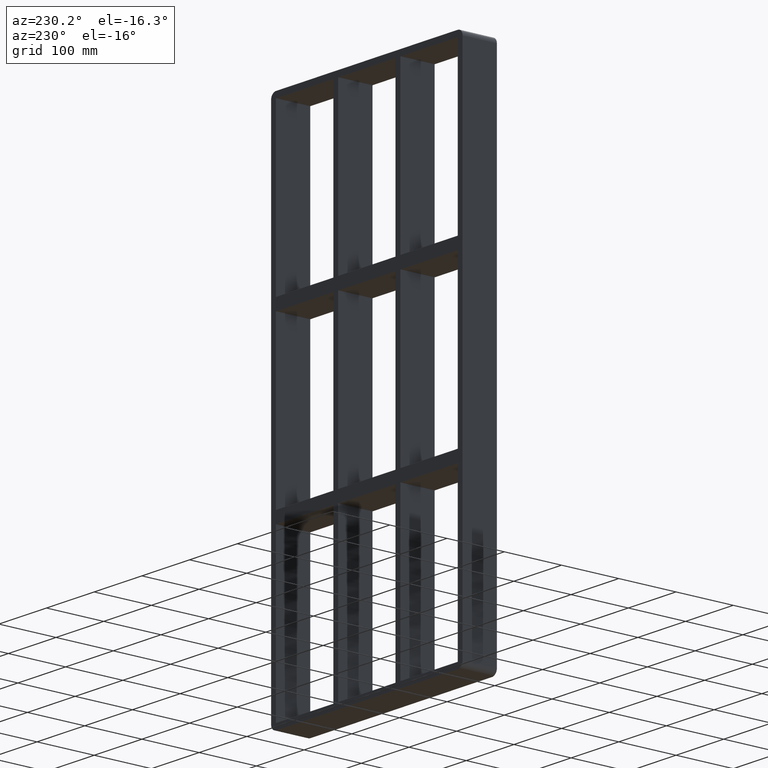
[diagram: clean part render]
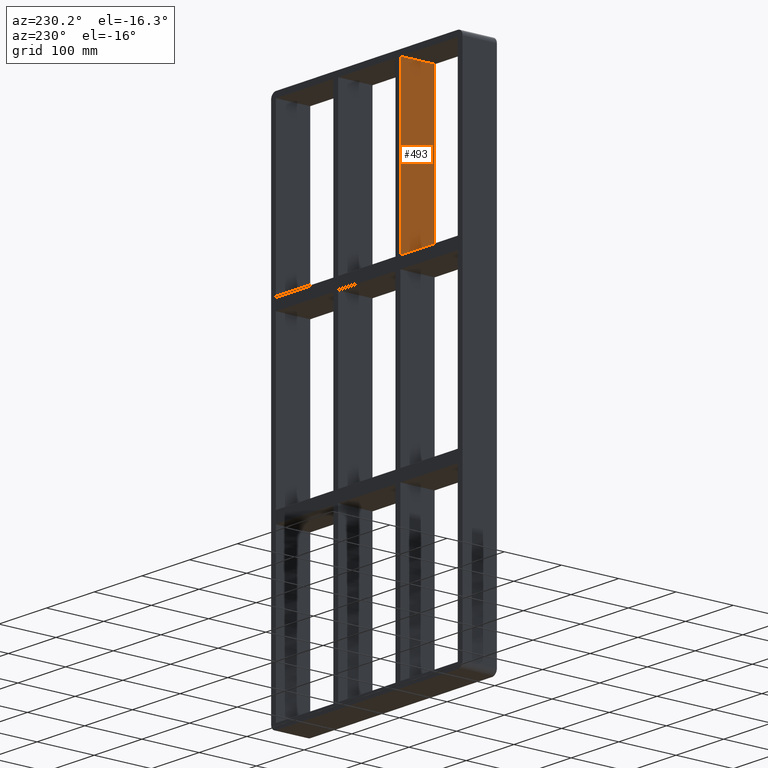
[diagram: same view with one face highlighted and labeled with its STEP entity id]
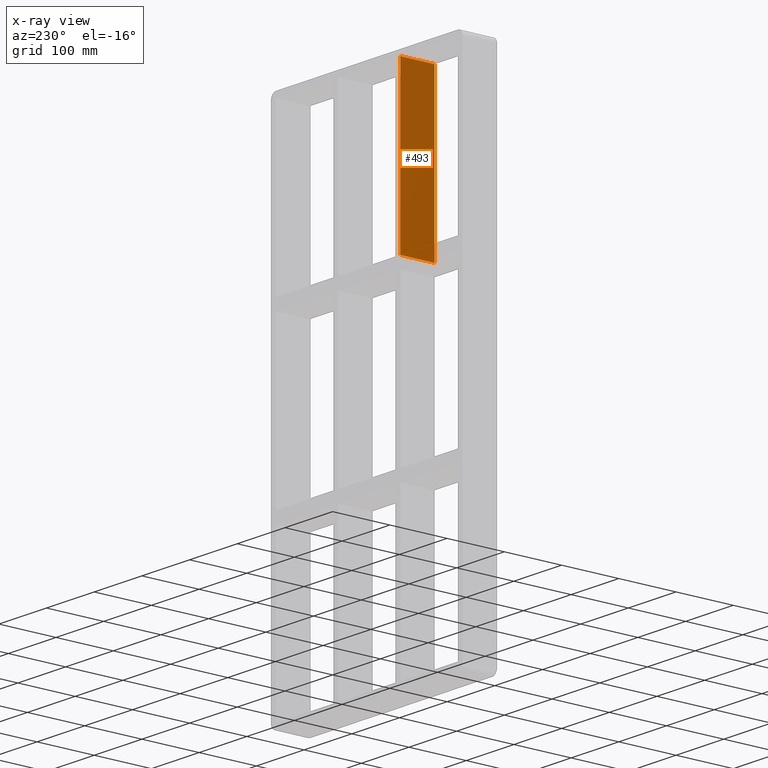
[diagram: x-ray of the same camera — body ghosted, the highlighted face saturated]
A machine part, auxiliary view. The second image highlights one B-rep face of the part: STEP entity #493.
The next image is the same camera in x-ray: the body ghosted, the highlighted face saturated — about 0% of this face is hidden behind the body in this view.
In plain terms, the highlighted planar face has unit normal (-1, 0, 0).
Its self-contained STEP definition (entity closure, byte-faithful):
#193=CARTESIAN_POINT('',(-70.250000000001364,57.0,158.99999999999991));
#194=VERTEX_POINT('',#193);
#195=CARTESIAN_POINT('',(-70.250000000001364,-3.0,158.99999999999991));
#196=VERTEX_POINT('',#195);
#197=CARTESIAN_POINT('',(-70.250000000001364,57.0,158.99999999999994));
#198=DIRECTION('',(0.0,-1.0,0.0));
#199=VECTOR('',#198,60.0);
#200=LINE('',#197,#199);
#201=EDGE_CURVE('',#194,#196,#200,.T.);
#463=CARTESIAN_POINT('',(-70.250000000001265,-3.0,-437.0));
#464=DIRECTION('',(-1.0,0.0,0.0));
#465=DIRECTION('',(0.0,0.0,1.0));
#466=AXIS2_PLACEMENT_3D('',#463,#464,#465);
#467=PLANE('',#466);
#468=ORIENTED_EDGE('',*,*,#201,.T.);
#469=CARTESIAN_POINT('',(-70.250000000001421,-3.0,437.0));
#470=VERTEX_POINT('',#469);
#471=CARTESIAN_POINT('',(-70.250000000001378,-3.0,159.0));
#472=DIRECTION('',(0.0,0.0,1.0));
#473=VECTOR('',#472,278.0);
#474=LINE('',#471,#473);
#475=EDGE_CURVE('',#196,#470,#474,.T.);
#476=ORIENTED_EDGE('',*,*,#475,.T.);
#477=CARTESIAN_POINT('',(-70.250000000001421,57.0,437.0));
#478=VERTEX_POINT('',#477);
#479=CARTESIAN_POINT('',(-70.250000000001421,57.000000000000007,437.0));
#480=DIRECTION('',(0.0,-1.0,0.0));
#481=VECTOR('',#480,60.000000000000007);
#482=LINE('',#479,#481);
#483=EDGE_CURVE('',#478,#470,#482,.T.);
#484=ORIENTED_EDGE('',*,*,#483,.F.);
#485=CARTESIAN_POINT('',(-70.250000000001378,57.0,159.0));
#486=DIRECTION('',(0.0,0.0,1.0));
#487=VECTOR('',#486,278.0);
#488=LINE('',#485,#487);
#489=EDGE_CURVE('',#194,#478,#488,.T.);
#490=ORIENTED_EDGE('',*,*,#489,.F.);
#491=EDGE_LOOP('',(#468,#476,#484,#490));
#492=FACE_OUTER_BOUND('',#491,.T.);
#493=ADVANCED_FACE('',(#492),#467,.T.);